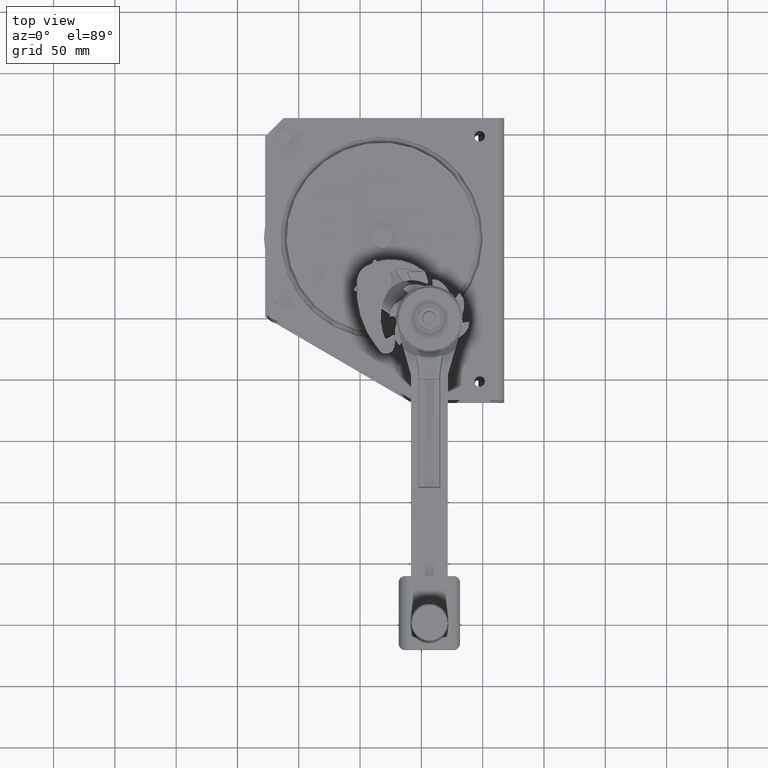
[diagram: clean part render]
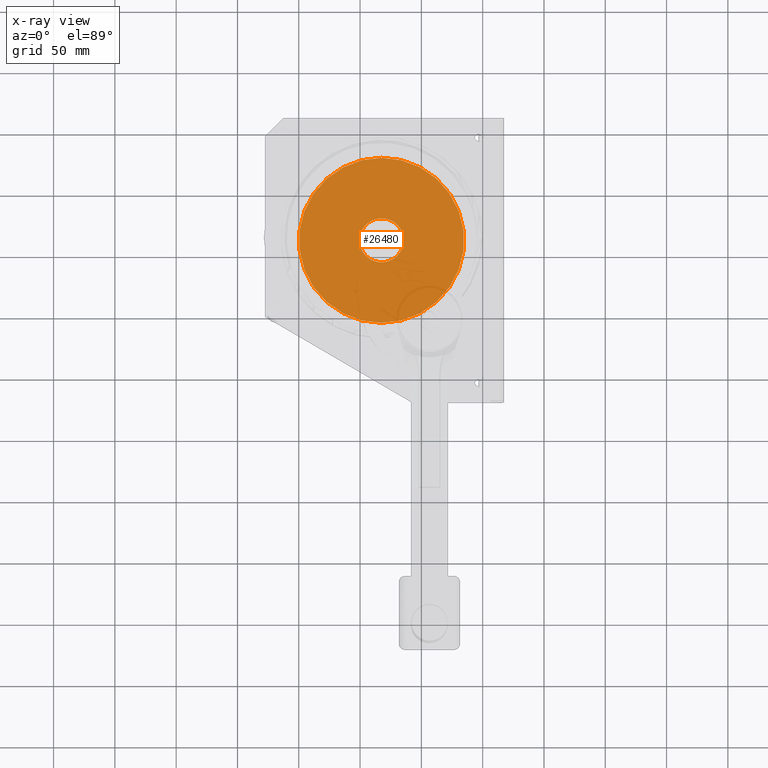
[diagram: x-ray — body ghosted, one internal face saturated and labeled with its STEP entity id]
A machine part, top view, then the same camera in x-ray: the body is ghosted and one INTERNAL B-rep face — a face not visible from any outside direction — is saturated and labeled: STEP entity #26480.
In plain terms, the highlighted planar face has unit normal (0, 0, -1).
Its self-contained STEP definition (entity closure, byte-faithful):
#6120=CARTESIAN_POINT('',(-35.9683450918841,-328.226427537302,0.));
#6130=VERTEX_POINT('',#6120);
#6300=CARTESIAN_POINT('',(-35.9683450918841,-193.609975340396,0.));
#6310=VERTEX_POINT('',#6300);
#6340=CARTESIAN_POINT('',(-35.9683450918841,-260.918201438849,0.));
#6350=DIRECTION('',(1.,0.,0.));
#6360=DIRECTION('',(0.,1.,0.));
#6370=AXIS2_PLACEMENT_3D('',#6340,#6350,#6360);
#6380=CIRCLE('',#6370,67.3082260984533);
#6390=EDGE_CURVE('',#6310,#6130,#6380,.T.);
#20710=CARTESIAN_POINT('',(-35.9683450918841,-260.918201438849,
17.9999999999999));
#20720=VERTEX_POINT('',#20710);
#20900=CARTESIAN_POINT('',(-35.9683450918841,-260.918201438849,
-17.9999999999999));
#20910=VERTEX_POINT('',#20900);
#20940=CARTESIAN_POINT('',(-35.9683450918841,-260.918201438849,0.));
#20950=DIRECTION('',(1.,0.,0.));
#20960=DIRECTION('',(0.,0.,1.));
#20970=AXIS2_PLACEMENT_3D('',#20940,#20950,#20960);
#20980=CIRCLE('',#20970,17.9999999999999);
#20990=EDGE_CURVE('',#20720,#20910,#20980,.T.);
#26330=CARTESIAN_POINT('',(-35.9683450918841,-216.764088389622,0.));
#26340=DIRECTION('',(1.,0.,0.));
#26350=DIRECTION('',(0.,-1.,0.));
#26360=AXIS2_PLACEMENT_3D('',#26330,#26340,#26350);
#26370=PLANE('',#26360);
#26380=EDGE_CURVE('',#6130,#6310,#6380,.T.);
#26390=ORIENTED_EDGE('',*,*,#26380,.T.);
#26400=ORIENTED_EDGE('',*,*,#6390,.T.);
#26410=EDGE_LOOP('',(#26400,#26390));
#26420=FACE_OUTER_BOUND('',#26410,.T.);
#26430=EDGE_CURVE('',#20910,#20720,#20980,.T.);
#26440=ORIENTED_EDGE('',*,*,#26430,.F.);
#26450=ORIENTED_EDGE('',*,*,#20990,.F.);
#26460=EDGE_LOOP('',(#26450,#26440));
#26470=FACE_BOUND('',#26460,.T.);
#26480=ADVANCED_FACE('',(#26420,#26470),#26370,.T.);